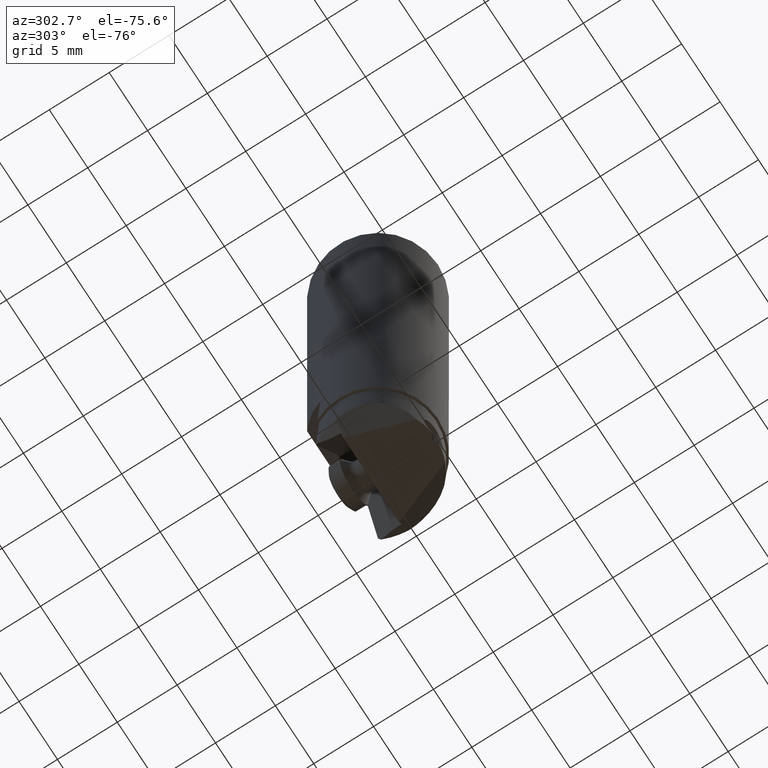
[diagram: clean part render]
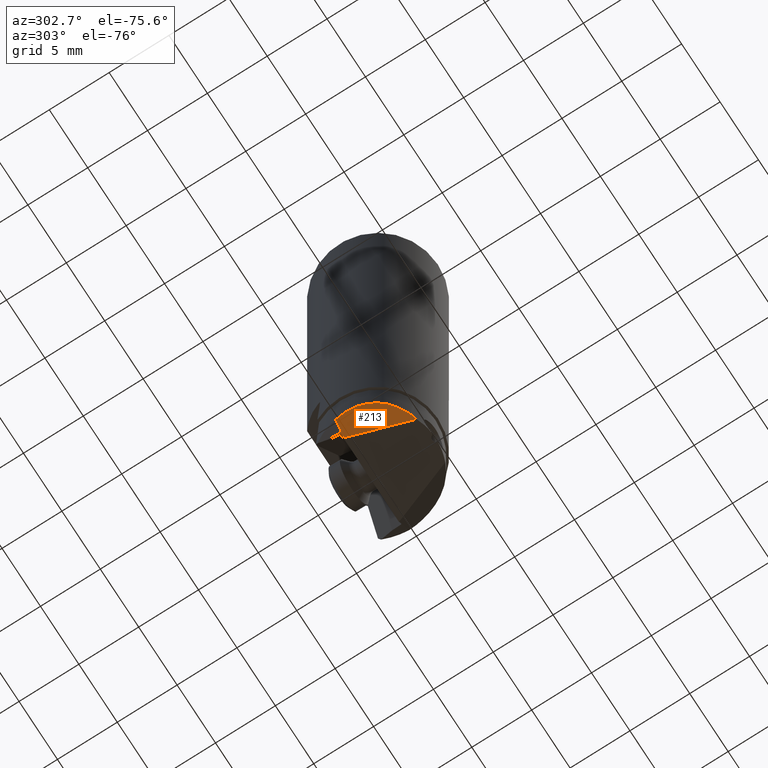
[diagram: same view with one face highlighted and labeled with its STEP entity id]
A machine part, auxiliary view. The second image highlights one B-rep face of the part: STEP entity #213.
In plain terms, the highlighted planar face has unit normal (0.6725, 0.309, 0.6725).
Its self-contained STEP definition (entity closure, byte-faithful):
#89=ELLIPSE('',#1248,7.13756226164256,4.8);
#119=FACE_OUTER_BOUND('',#305,.T.);
#213=ADVANCED_FACE('',(#119),#265,.F.);
#265=PLANE('',#1276);
#305=EDGE_LOOP('',(#642,#643,#644));
#370=LINE('',#1939,#442);
#389=LINE('',#2015,#461);
#442=VECTOR('',#1467,1.);
#461=VECTOR('',#1528,1.);
#642=ORIENTED_EDGE('',*,*,#989,.F.);
#643=ORIENTED_EDGE('',*,*,#1026,.F.);
#644=ORIENTED_EDGE('',*,*,#996,.F.);
#866=VERTEX_POINT('',#1897);
#867=VERTEX_POINT('',#1899);
#872=VERTEX_POINT('',#1940);
#989=EDGE_CURVE('',#866,#867,#89,.T.);
#996=EDGE_CURVE('',#867,#872,#370,.T.);
#1026=EDGE_CURVE('',#872,#866,#389,.T.);
#1248=AXIS2_PLACEMENT_3D('',#1898,#1453,#1454);
#1276=AXIS2_PLACEMENT_3D('',#2017,#1531,#1532);
#1453=DIRECTION('',(0.672498511964596,0.309016994374998,0.672498511963296));
#1454=DIRECTION('',(0.611073072575033,0.280791646183706,-0.740098474128378));
#1467=DIRECTION('',(-0.332416674053591,0.937966049210875,-0.0985842043072374));
#1528=DIRECTION('',(-0.707106781187598,7.02119689974798E-14,0.707106781185498));
#1531=DIRECTION('',(0.672498511964596,0.309016994374998,0.672498511963296));
#1532=DIRECTION('',(-0.218508012224446,0.951056516295137,-0.218508012224446));
#1897=CARTESIAN_POINT('',(-4.77513238671468,0.487965869048483,-48.4718141037843));
#1898=CARTESIAN_POINT('',(0.,0.,-53.0227233234234));
#1899=CARTESIAN_POINT('',(-1.8586441182293,-4.42554426503325,-49.1305157653813));
#1939=CARTESIAN_POINT('',(-1.858644118229,-4.425544265035,-49.13051576538));
#1940=CARTESIAN_POINT('',(-3.600000000002,0.4879658690368,-49.64694649049));
#2015=CARTESIAN_POINT('',(-3.600000000002,0.4879658690368,-49.64694649049));
#2017=CARTESIAN_POINT('',(-3.447947391181,-1.968789197999,-48.67010579587));